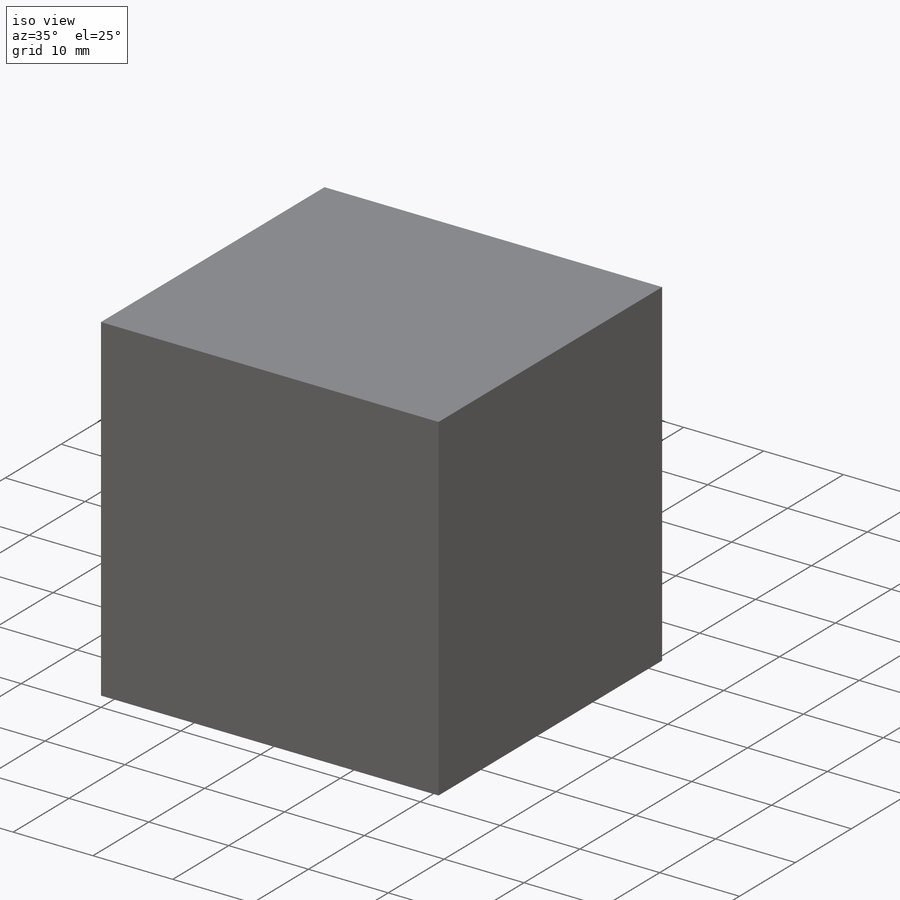
[diagram: iso view]
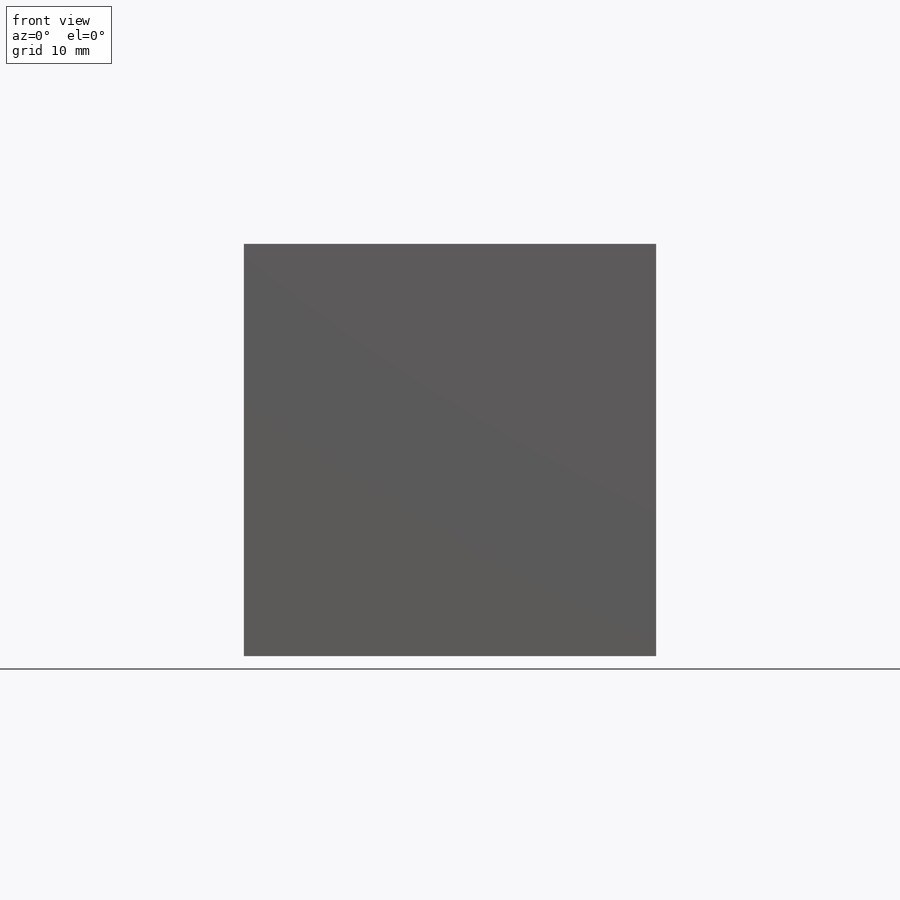
[diagram: front view]
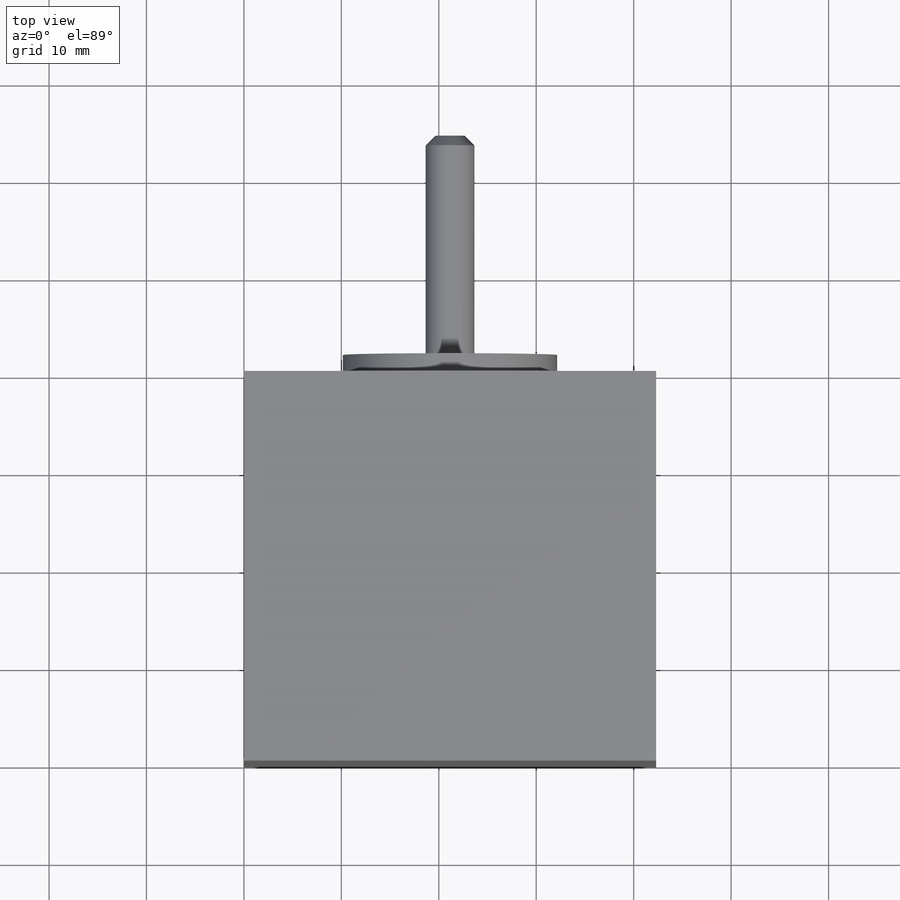
[diagram: top view]
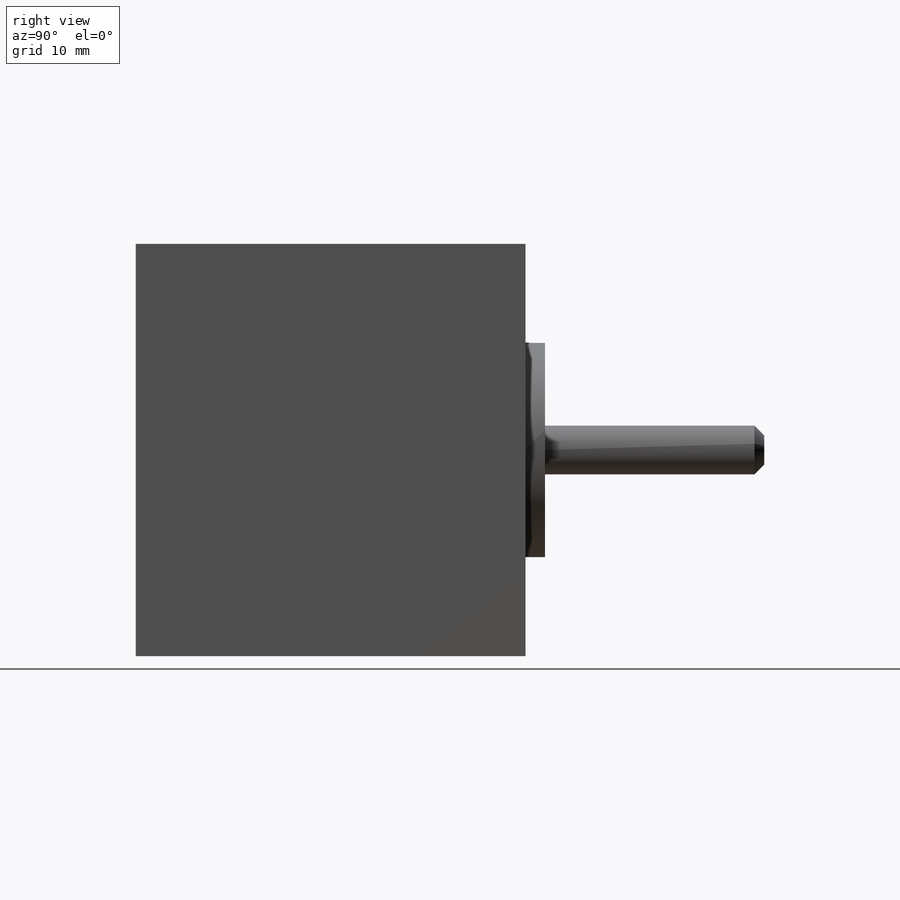
[diagram: right view]
SOLIDWORKS PART (.sldprt)
format: sldprt  version: not decoded by parser v0  size: 203,776 bytes
history: native  units: mm
features: sketch x4, thread x4, plane x3, extrude x3, material x1, chamfer x1, cut_extrude x1 (+9 scaffold rows collapsed)
feature tree (26):
  scaffold x9  (default folders/planes/origin — collapsed)
  material  "Material <nicht festgelegt>"
  plane  "Ebene vorne"
  plane  "Ebene oben"
  plane  "Ebene rechts"
  sketch  "Skizze1"  dims[D1=42.3mm D2=42.3mm]
  extrude  "Aufsatz-Linear austragen1"  Depth=40mm
  sketch  "Skizze2"  dims[c1.D1=22.0mm c1.D2=22.0mm c1.D3=22.0mm c2.D2=21.15mm c2.D3=21.15mm]
  extrude  "Aufsatz-Linear austragen2"  Depth=2mm
  sketch  "Skizze3"  dims[c1.D1=5.0mm c1.D2=21.15mm c1.D3=21.15mm c2.D2=21.15mm c2.D3=21.15mm]
  extrude  "Aufsatz-Linear austragen3"  Depth=22.5mm
  chamfer  "Fase1"  Distance=1mm Angle=45deg
  sketch  "Skizze4"  dims[c1.D1=2.5mm c1.D2=2.5mm c1.D3=2.5mm c1.D4=2.5mm c1.D7=2.5mm c1.D5=5.65mm c1.D6=5.65mm c2.D7=5.65mm c2.D8=5.65mm c2.D9=5.65mm c2.D10=5.65mm c2.D11=5.65mm c2.D12=5.65mm]
  cut_extrude  "Schnitt-Linear austragen1"  [1 undecoded]
  thread  "Gewindedarstellung1"  Diameter=4.5mm  [1 undecoded]
  thread  "Gewindedarstellung2"  Diameter=4.5mm  [1 undecoded]
  thread  "Gewindedarstellung3"  Diameter=4.5mm  [1 undecoded]
  thread  "Gewindedarstellung4"  Diameter=4.5mm  [1 undecoded]
decode coverage: 12 of 13 modeling features carry decoded parameters
note: 5 parameter values undecoded
note: suppression state not decoded; provenance and decode notes live in map.json
